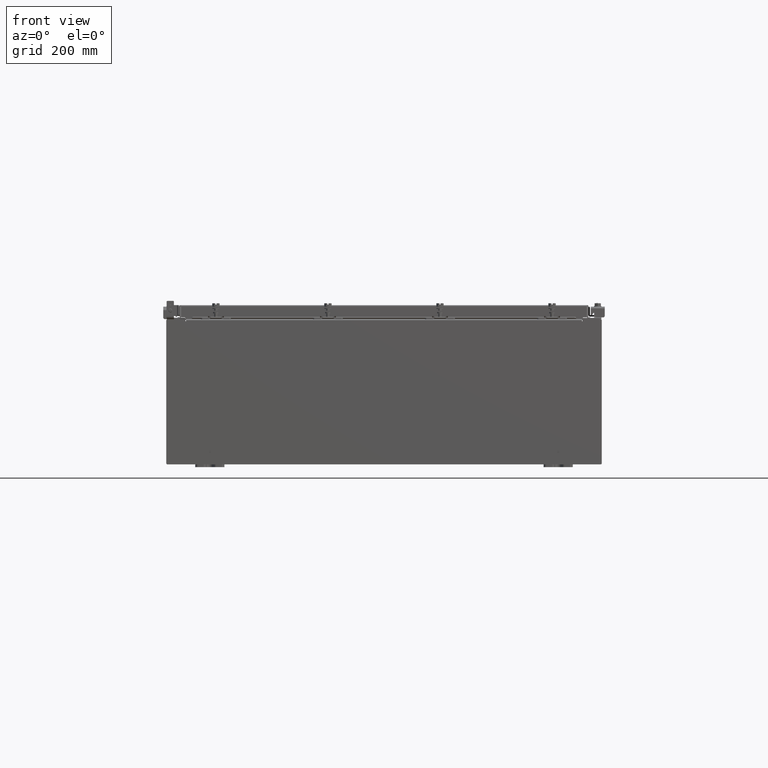
[diagram: clean part render]
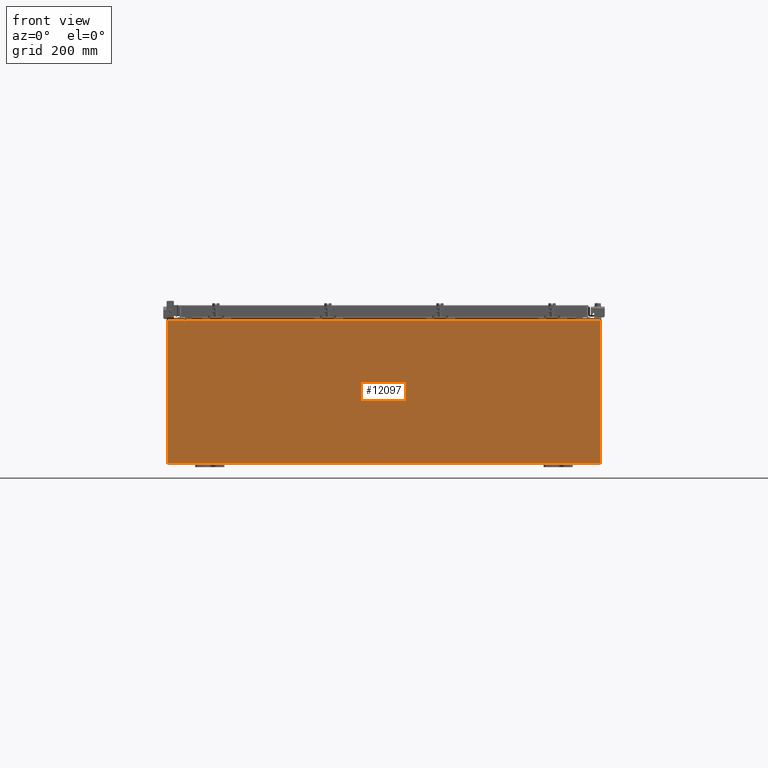
[diagram: same view with one face highlighted and labeled with its STEP entity id]
A machine part, front view. The second image highlights one B-rep face of the part: STEP entity #12097.
In plain terms, the highlighted planar face has unit normal (-0, 1, -0).
Its self-contained STEP definition (entity closure, byte-faithful):
#60 = EDGE_CURVE ( 'NONE', #107, #5909, #23361, .T. ) ;
#88 = DIRECTION ( 'NONE',  ( 1.000000000000000000, 0.0000000000000000000, 0.0000000000000000000 ) ) ;
#107 = VERTEX_POINT ( 'NONE', #12839 ) ;
#181 = VECTOR ( 'NONE', #88, 39.37007874015748100 ) ;
#398 = CARTESIAN_POINT ( 'NONE',  ( 13.67454999999999800, 0.0000000000000000000, 4.874950000000000100 ) ) ;
#657 = VERTEX_POINT ( 'NONE', #13551 ) ;
#899 = EDGE_CURVE ( 'NONE', #15479, #17155, #3882, .T. ) ;
#1713 = FACE_OUTER_BOUND ( 'NONE', #8879, .T. ) ;
#1852 = VERTEX_POINT ( 'NONE', #13730 ) ;
#1903 = ORIENTED_EDGE ( 'NONE', *, *, #13006, .T. ) ;
#1944 = ORIENTED_EDGE ( 'NONE', *, *, #15628, .F. ) ;
#1960 = DIRECTION ( 'NONE',  ( 0.0000000000000000000, 0.0000000000000000000, -1.000000000000000000 ) ) ;
#2216 = LINE ( 'NONE', #17201, #24364 ) ;
#2267 = EDGE_CURVE ( 'NONE', #15479, #4008, #14187, .T. ) ;
#2424 = CARTESIAN_POINT ( 'NONE',  ( -14.92530000000000200, 0.0000000000000000000, -4.925300000000000000 ) ) ;
#2690 = CARTESIAN_POINT ( 'NONE',  ( 14.92529999999999800, 0.0000000000000000000, -4.925300000000000000 ) ) ;
#2755 = VERTEX_POINT ( 'NONE', #2690 ) ;
#2770 = LINE ( 'NONE', #16046, #13472 ) ;
#2820 = DIRECTION ( 'NONE',  ( 0.0000000000000000000, 0.0000000000000000000, 1.000000000000000000 ) ) ;
#3096 = EDGE_CURVE ( 'NONE', #17155, #8258, #13288, .T. ) ;
#3117 = DIRECTION ( 'NONE',  ( -4.340572780400004900E-014, 0.0000000000000000000, -1.000000000000000000 ) ) ;
#3303 = CARTESIAN_POINT ( 'NONE',  ( 14.92529999999999800, 0.0000000000000000000, 4.925300000000000000 ) ) ;
#3351 = CARTESIAN_POINT ( 'NONE',  ( -13.65587500000000000, 0.0000000000000000000, 4.874950000000000100 ) ) ;
#3610 = VECTOR ( 'NONE', #1960, 39.37007874015748100 ) ;
#3882 = LINE ( 'NONE', #13147, #13378 ) ;
#3911 = DIRECTION ( 'NONE',  ( 0.0000000000000000000, 0.0000000000000000000, -1.000000000000000000 ) ) ;
#3992 = DIRECTION ( 'NONE',  ( -0.0000000000000000000, -0.0000000000000000000, 1.000000000000000000 ) ) ;
#4008 = VERTEX_POINT ( 'NONE', #3303 ) ;
#4771 = CARTESIAN_POINT ( 'NONE',  ( 13.67455000000000000, 0.0000000000000000000, 4.925300000000000000 ) ) ;
#5222 = LINE ( 'NONE', #9563, #181 ) ;
#5279 = DIRECTION ( 'NONE',  ( 0.0000000000000000000, 0.0000000000000000000, -1.000000000000000000 ) ) ;
#5304 = LINE ( 'NONE', #2424, #15386 ) ;
#5909 = VERTEX_POINT ( 'NONE', #24256 ) ;
#6398 = ORIENTED_EDGE ( 'NONE', *, *, #3096, .F. ) ;
#6637 = CARTESIAN_POINT ( 'NONE',  ( -13.67455000000000000, 0.0000000000000000000, 4.874950000000000100 ) ) ;
#7060 = ORIENTED_EDGE ( 'NONE', *, *, #23385, .T. ) ;
#8258 = VERTEX_POINT ( 'NONE', #16385 ) ;
#8512 = PLANE ( 'NONE',  #15588 ) ;
#8532 = ORIENTED_EDGE ( 'NONE', *, *, #2267, .T. ) ;
#8700 = ORIENTED_EDGE ( 'NONE', *, *, #18102, .F. ) ;
#8879 = EDGE_LOOP ( 'NONE', ( #13493, #1944, #9292, #1903, #8700, #6398, #14292, #8532, #16200, #24142, #7060, #21460 ) ) ;
#9205 = EDGE_CURVE ( 'NONE', #4008, #2755, #23684, .T. ) ;
#9292 = ORIENTED_EDGE ( 'NONE', *, *, #23322, .F. ) ;
#9563 = CARTESIAN_POINT ( 'NONE',  ( -13.63720000000000400, -7.171100983368691200E-016, 4.912300000000000100 ) ) ;
#10332 = DIRECTION ( 'NONE',  ( 1.000000000000000000, 0.0000000000000000000, 0.0000000000000000000 ) ) ;
#10414 = DIRECTION ( 'NONE',  ( 0.0000000000000000000, -1.000000000000000000, 0.0000000000000000000 ) ) ;
#10618 = EDGE_CURVE ( 'NONE', #18119, #5909, #13351, .T. ) ;
#11126 = VECTOR ( 'NONE', #3911, 39.37007874015748100 ) ;
#11556 = CARTESIAN_POINT ( 'NONE',  ( -13.67455000000000000, -0.0000000000000000000, 0.0000000000000000000 ) ) ;
#12097 = ADVANCED_FACE ( 'NONE', ( #1713 ), #8512, .F. ) ;
#12642 = CARTESIAN_POINT ( 'NONE',  ( 13.65587499999999800, 0.0000000000000000000, 4.874950000000000100 ) ) ;
#12839 = CARTESIAN_POINT ( 'NONE',  ( -14.92530000000000200, 0.0000000000000000000, 4.925300000000000000 ) ) ;
#13006 = EDGE_CURVE ( 'NONE', #1852, #657, #5222, .T. ) ;
#13147 = CARTESIAN_POINT ( 'NONE',  ( 13.67454999999978500, -0.0000000000000000000, -5.935537951421795000E-013 ) ) ;
#13287 = CIRCLE ( 'NONE', #21616, 0.01867499999999949400 ) ;
#13288 = CIRCLE ( 'NONE', #22500, 0.01867499999999949400 ) ;
#13351 = LINE ( 'NONE', #11556, #22765 ) ;
#13372 = CARTESIAN_POINT ( 'NONE',  ( -13.63720000000000000, -0.0000000000000000000, 0.0000000000000000000 ) ) ;
#13378 = VECTOR ( 'NONE', #3117, 39.37007874015748100 ) ;
#13429 = DIRECTION ( 'NONE',  ( 0.0000000000000000000, 0.0000000000000000000, 1.000000000000000000 ) ) ;
#13438 = VERTEX_POINT ( 'NONE', #22128 ) ;
#13472 = VECTOR ( 'NONE', #2820, 39.37007874015748100 ) ;
#13493 = ORIENTED_EDGE ( 'NONE', *, *, #10618, .F. ) ;
#13551 = CARTESIAN_POINT ( 'NONE',  ( 13.63719999999999800, 0.0000000000000000000, 4.912300000000000100 ) ) ;
#13730 = CARTESIAN_POINT ( 'NONE',  ( -13.63720000000000000, -7.171100983368691200E-016, 4.912300000000000100 ) ) ;
#13778 = DIRECTION ( 'NONE',  ( -1.000000000000000000, -0.0000000000000000000, -0.0000000000000000000 ) ) ;
#14187 = LINE ( 'NONE', #24234, #19782 ) ;
#14279 = DIRECTION ( 'NONE',  ( 1.000000000000000000, 0.0000000000000000000, 0.0000000000000000000 ) ) ;
#14292 = ORIENTED_EDGE ( 'NONE', *, *, #899, .F. ) ;
#14523 = VECTOR ( 'NONE', #14279, 39.37007874015748100 ) ;
#14691 = EDGE_CURVE ( 'NONE', #2755, #13438, #5304, .T. ) ;
#15218 = CARTESIAN_POINT ( 'NONE',  ( 14.92529999999999800, 0.0000000000000000000, 4.925300000000000000 ) ) ;
#15386 = VECTOR ( 'NONE', #13778, 39.37007874015748100 ) ;
#15479 = VERTEX_POINT ( 'NONE', #4771 ) ;
#15494 = VERTEX_POINT ( 'NONE', #16186 ) ;
#15588 = AXIS2_PLACEMENT_3D ( 'NONE', #21686, #10414, #23590 ) ;
#15628 = EDGE_CURVE ( 'NONE', #15494, #18119, #13287, .T. ) ;
#16046 = CARTESIAN_POINT ( 'NONE',  ( 13.63719999999999800, 0.0000000000000000000, 0.0000000000000000000 ) ) ;
#16112 = LINE ( 'NONE', #13372, #11126 ) ;
#16186 = CARTESIAN_POINT ( 'NONE',  ( -13.63720000000000000, -0.0000000000000000000, 4.874950000000000100 ) ) ;
#16200 = ORIENTED_EDGE ( 'NONE', *, *, #9205, .T. ) ;
#16385 = CARTESIAN_POINT ( 'NONE',  ( 13.63719999999999800, 0.0000000000000000000, 4.874950000000000100 ) ) ;
#16592 = DIRECTION ( 'NONE',  ( -0.0000000000000000000, 1.000000000000000000, -0.0000000000000000000 ) ) ;
#17155 = VERTEX_POINT ( 'NONE', #398 ) ;
#17201 = CARTESIAN_POINT ( 'NONE',  ( -14.92530000000000200, 0.0000000000000000000, 4.925300000000000000 ) ) ;
#18102 = EDGE_CURVE ( 'NONE', #8258, #657, #2770, .T. ) ;
#18119 = VERTEX_POINT ( 'NONE', #6637 ) ;
#18288 = DIRECTION ( 'NONE',  ( -0.0000000000000000000, 1.000000000000000000, -0.0000000000000000000 ) ) ;
#19782 = VECTOR ( 'NONE', #10332, 39.37007874015748100 ) ;
#20288 = DIRECTION ( 'NONE',  ( 0.0000000000000000000, 0.0000000000000000000, -1.000000000000000000 ) ) ;
#21460 = ORIENTED_EDGE ( 'NONE', *, *, #60, .T. ) ;
#21569 = CARTESIAN_POINT ( 'NONE',  ( -14.92530000000000200, 0.0000000000000000000, 4.925300000000000000 ) ) ;
#21616 = AXIS2_PLACEMENT_3D ( 'NONE', #3351, #16592, #5279 ) ;
#21686 = CARTESIAN_POINT ( 'NONE',  ( 0.0000000000000000000, 0.0000000000000000000, 0.0000000000000000000 ) ) ;
#22128 = CARTESIAN_POINT ( 'NONE',  ( -14.92530000000000200, 0.0000000000000000000, -4.925300000000000000 ) ) ;
#22500 = AXIS2_PLACEMENT_3D ( 'NONE', #12642, #18288, #20288 ) ;
#22765 = VECTOR ( 'NONE', #13429, 39.37007874015748100 ) ;
#23322 = EDGE_CURVE ( 'NONE', #1852, #15494, #16112, .T. ) ;
#23361 = LINE ( 'NONE', #21569, #14523 ) ;
#23385 = EDGE_CURVE ( 'NONE', #13438, #107, #2216, .T. ) ;
#23590 = DIRECTION ( 'NONE',  ( 0.0000000000000000000, -0.0000000000000000000, -1.000000000000000000 ) ) ;
#23684 = LINE ( 'NONE', #15218, #3610 ) ;
#24142 = ORIENTED_EDGE ( 'NONE', *, *, #14691, .T. ) ;
#24234 = CARTESIAN_POINT ( 'NONE',  ( -14.92530000000000200, 0.0000000000000000000, 4.925300000000000000 ) ) ;
#24256 = CARTESIAN_POINT ( 'NONE',  ( -13.67455000000000000, 0.0000000000000000000, 4.925300000000000000 ) ) ;
#24364 = VECTOR ( 'NONE', #3992, 39.37007874015748100 ) ;